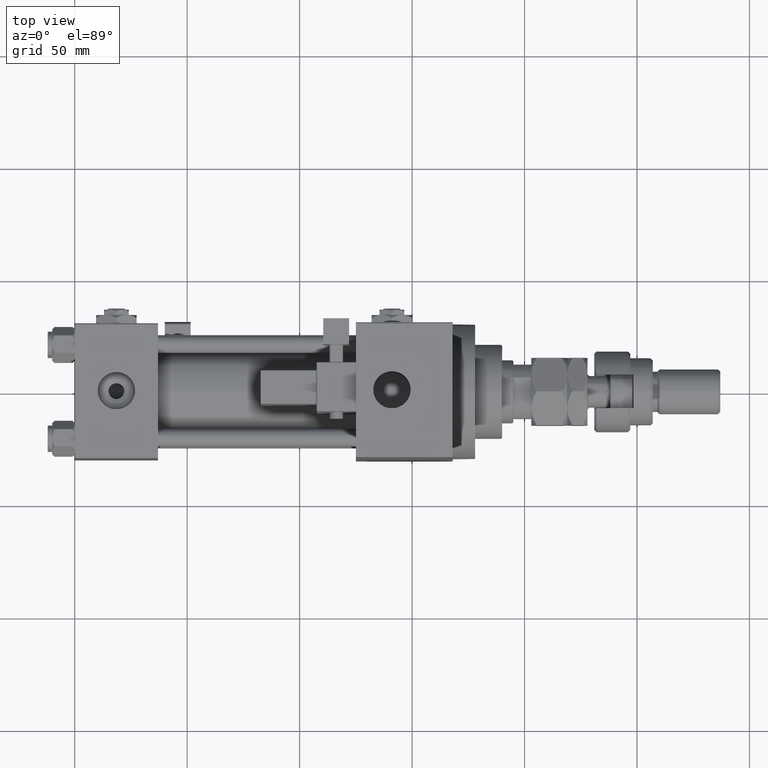
[diagram: clean part render]
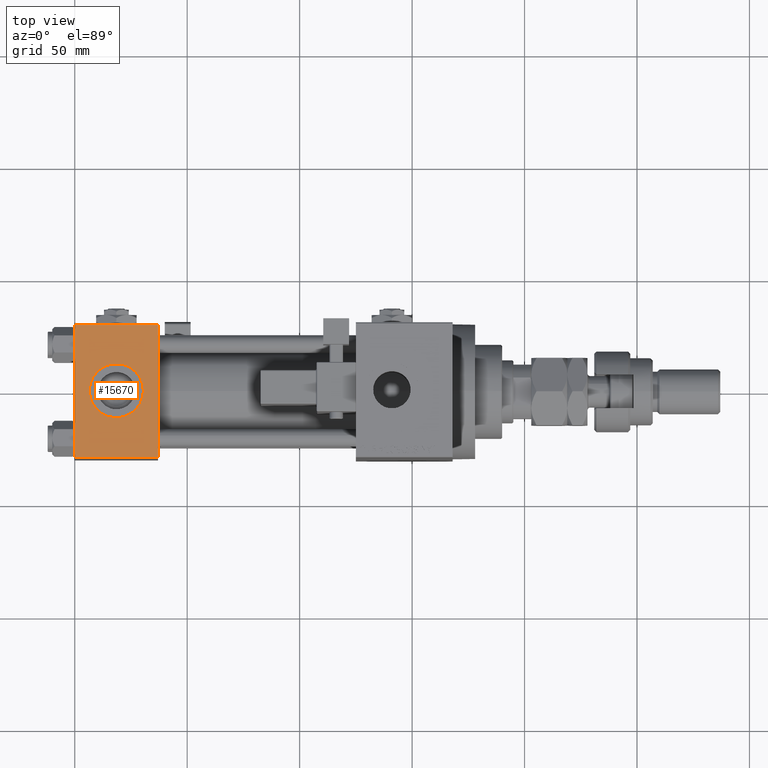
[diagram: same view with one face highlighted and labeled with its STEP entity id]
A machine part, top view. The second image highlights one B-rep face of the part: STEP entity #15670.
In plain terms, the highlighted planar face has unit normal (0, 0, -1).
Its self-contained STEP definition (entity closure, byte-faithful):
#296 = AXIS2_PLACEMENT_3D ( 'NONE', #33703, #48231, #39119 ) ;
#312 = AXIS2_PLACEMENT_3D ( 'NONE', #52398, #14539, #27555 ) ;
#1320 = VERTEX_POINT ( 'NONE', #37587 ) ;
#2684 = DIRECTION ( 'NONE',  ( -1.000000000000000000, 0.000000000000000000, 0.000000000000000000 ) ) ;
#4916 = VECTOR ( 'NONE', #54334, 1000.000000000000000 ) ;
#5951 = DIRECTION ( 'NONE',  ( 0.000000000000000000, -1.000000000000000000, -1.156482317317871725E-16 ) ) ;
#6630 = ORIENTED_EDGE ( 'NONE', *, *, #42722, .F. ) ;
#7064 = VERTEX_POINT ( 'NONE', #18614 ) ;
#7929 = VERTEX_POINT ( 'NONE', #38221 ) ;
#8841 = EDGE_CURVE ( 'NONE', #1320, #29470, #19061, .T. ) ;
#10517 = DIRECTION ( 'NONE',  ( 0.000000000000000000, -1.000000000000000000, -1.156482317317871725E-16 ) ) ;
#11779 = LINE ( 'NONE', #14831, #48796 ) ;
#12595 = ORIENTED_EDGE ( 'NONE', *, *, #14542, .T. ) ;
#13490 = EDGE_LOOP ( 'NONE', ( #37834, #48128, #36704, #12595 ) ) ;
#14086 = DIRECTION ( 'NONE',  ( 0.000000000000000000, 0.000000000000000000, 1.000000000000000000 ) ) ;
#14227 = LINE ( 'NONE', #34451, #30641 ) ;
#14539 = DIRECTION ( 'NONE',  ( 0.000000000000000000, 0.000000000000000000, 1.000000000000000000 ) ) ;
#14542 = EDGE_CURVE ( 'NONE', #1320, #7064, #11779, .T. ) ;
#14831 = CARTESIAN_POINT ( 'NONE',  ( 0.000000000000000000, 29.49999999999999289, 30.00000000000000000 ) ) ;
#15670 = ADVANCED_FACE ( 'NONE', ( #31378, #47696 ), #52358, .F. ) ;
#16736 = LINE ( 'NONE', #46323, #4916 ) ;
#18614 = CARTESIAN_POINT ( 'NONE',  ( 0.000000000000000000, 29.49999999999999289, 30.00000000000000000 ) ) ;
#19061 = LINE ( 'NONE', #52504, #31424 ) ;
#24120 = CIRCLE ( 'NONE', #312, 12.00000000000000000 ) ;
#27555 = DIRECTION ( 'NONE',  ( 1.000000000000000000, 0.000000000000000000, 0.000000000000000000 ) ) ;
#27829 = CIRCLE ( 'NONE', #49011, 12.00000000000000000 ) ;
#28647 = CARTESIAN_POINT ( 'NONE',  ( 6.499999999999997335, -1.999870792976790833E-15, 29.99999999999999645 ) ) ;
#29470 = VERTEX_POINT ( 'NONE', #36010 ) ;
#30341 = VERTEX_POINT ( 'NONE', #28647 ) ;
#30641 = VECTOR ( 'NONE', #5951, 1000.000000000000000 ) ;
#31378 = FACE_BOUND ( 'NONE', #42752, .T. ) ;
#31424 = VECTOR ( 'NONE', #10517, 1000.000000000000000 ) ;
#33703 = CARTESIAN_POINT ( 'NONE',  ( 37.00000000000000000, 29.99999999999999289, 30.00000000000000000 ) ) ;
#34020 = CARTESIAN_POINT ( 'NONE',  ( 0.000000000000000000, -29.49999999999998579, 29.99999999999999289 ) ) ;
#34451 = CARTESIAN_POINT ( 'NONE',  ( 0.000000000000000000, 29.99999999999999289, 30.00000000000000000 ) ) ;
#36010 = CARTESIAN_POINT ( 'NONE',  ( 37.00000000000000000, -29.49999999999998579, 29.99999999999999289 ) ) ;
#36690 = VERTEX_POINT ( 'NONE', #34020 ) ;
#36704 = ORIENTED_EDGE ( 'NONE', *, *, #8841, .F. ) ;
#37587 = CARTESIAN_POINT ( 'NONE',  ( 37.00000000000000000, 29.49999999999999289, 30.00000000000000000 ) ) ;
#37834 = ORIENTED_EDGE ( 'NONE', *, *, #52302, .T. ) ;
#38221 = CARTESIAN_POINT ( 'NONE',  ( 30.50000000000000000, -3.469446951953614978E-15, 29.99999999999999645 ) ) ;
#38972 = CARTESIAN_POINT ( 'NONE',  ( 18.50000000000000000, -3.469446951953614978E-15, 29.99999999999999645 ) ) ;
#39119 = DIRECTION ( 'NONE',  ( 0.000000000000000000, 1.000000000000000000, 1.156482317317871725E-16 ) ) ;
#40610 = ORIENTED_EDGE ( 'NONE', *, *, #46042, .F. ) ;
#42722 = EDGE_CURVE ( 'NONE', #30341, #7929, #24120, .T. ) ;
#42752 = EDGE_LOOP ( 'NONE', ( #40610, #6630 ) ) ;
#46042 = EDGE_CURVE ( 'NONE', #7929, #30341, #27829, .T. ) ;
#46323 = CARTESIAN_POINT ( 'NONE',  ( 37.00000000000000000, -29.50000000000000000, 29.99999999999999289 ) ) ;
#47147 = EDGE_CURVE ( 'NONE', #36690, #29470, #16736, .T. ) ;
#47696 = FACE_OUTER_BOUND ( 'NONE', #13490, .T. ) ;
#48128 = ORIENTED_EDGE ( 'NONE', *, *, #47147, .T. ) ;
#48231 = DIRECTION ( 'NONE',  ( 0.000000000000000000, 1.156482317317871725E-16, -1.000000000000000000 ) ) ;
#48796 = VECTOR ( 'NONE', #2684, 1000.000000000000000 ) ;
#49011 = AXIS2_PLACEMENT_3D ( 'NONE', #38972, #14086, #51130 ) ;
#51130 = DIRECTION ( 'NONE',  ( 1.000000000000000000, 0.000000000000000000, 0.000000000000000000 ) ) ;
#52302 = EDGE_CURVE ( 'NONE', #7064, #36690, #14227, .T. ) ;
#52358 = PLANE ( 'NONE',  #296 ) ;
#52398 = CARTESIAN_POINT ( 'NONE',  ( 18.50000000000000000, -3.469446951953614978E-15, 29.99999999999999645 ) ) ;
#52504 = CARTESIAN_POINT ( 'NONE',  ( 37.00000000000000000, 29.99999999999999289, 30.00000000000000000 ) ) ;
#54334 = DIRECTION ( 'NONE',  ( 1.000000000000000000, 0.000000000000000000, 0.000000000000000000 ) ) ;